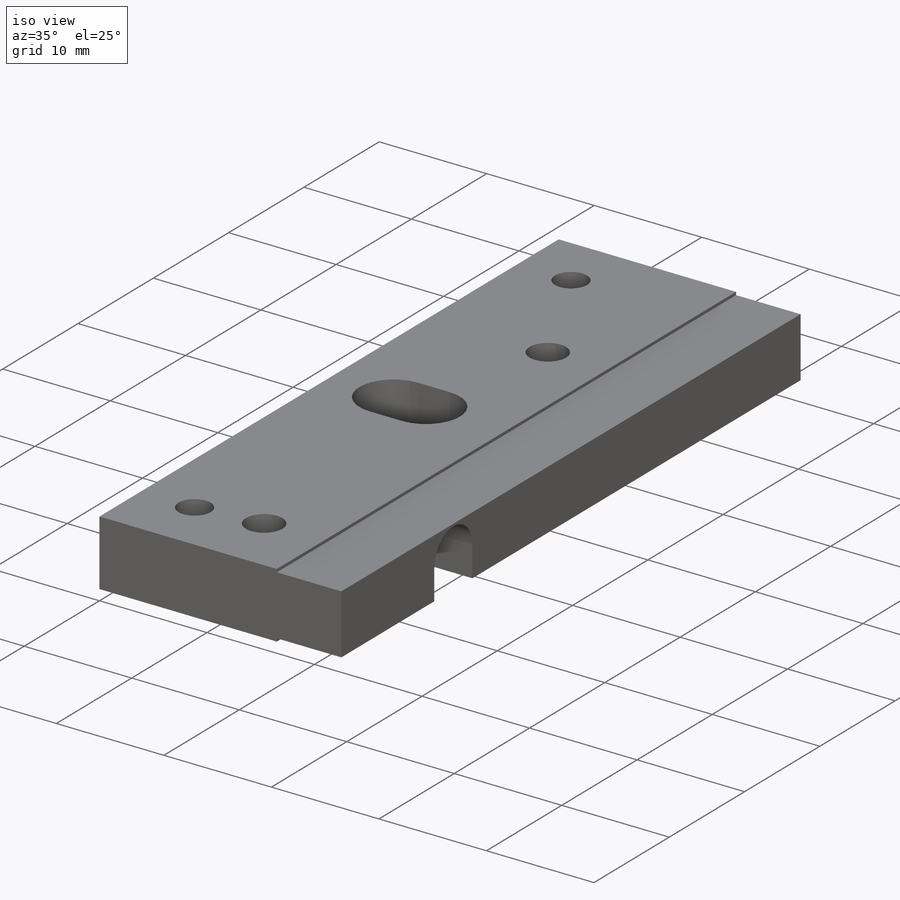
[diagram: iso view]
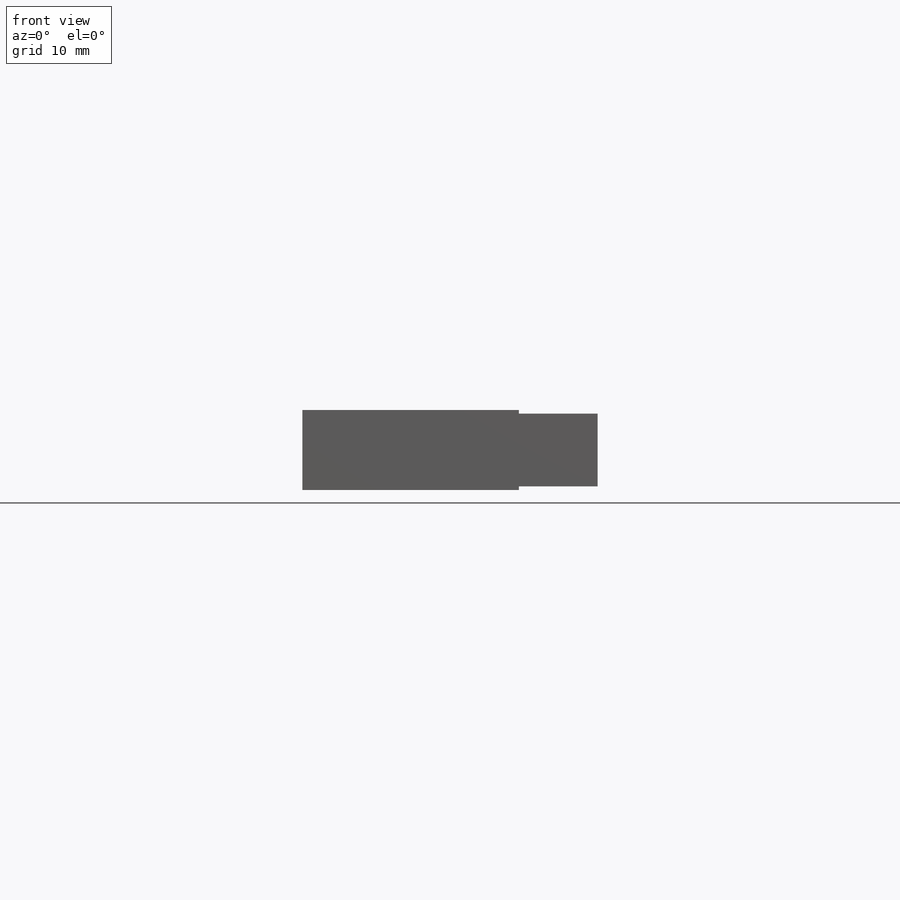
[diagram: front view]
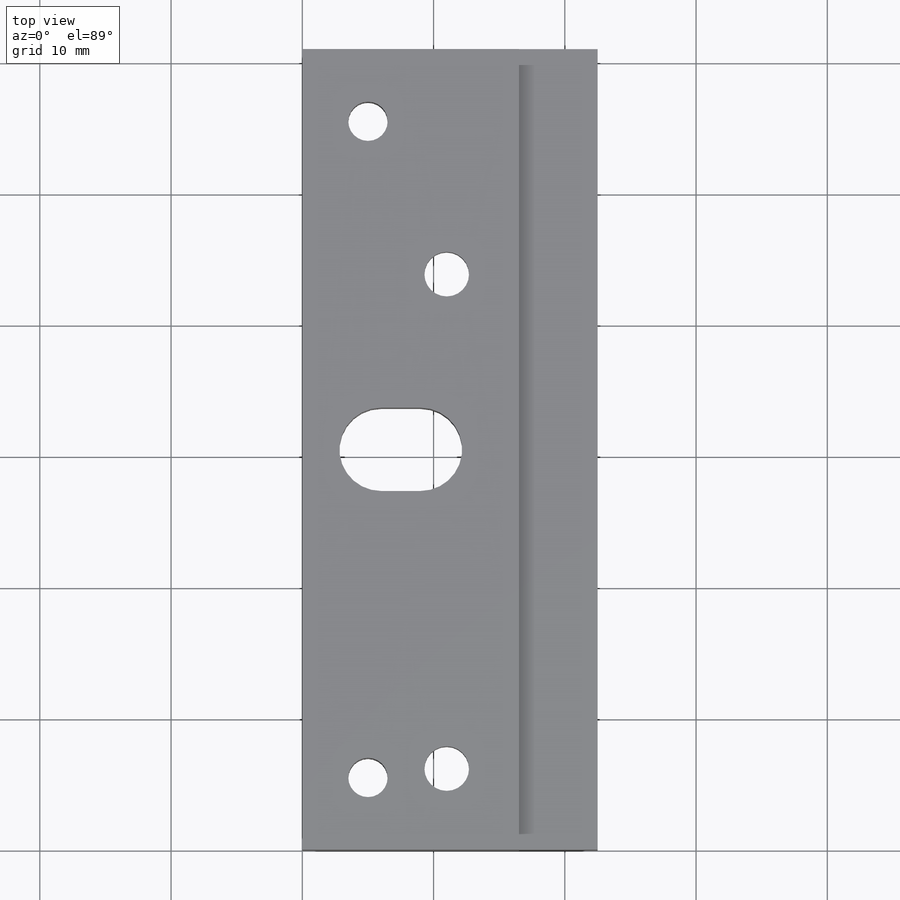
[diagram: top view]
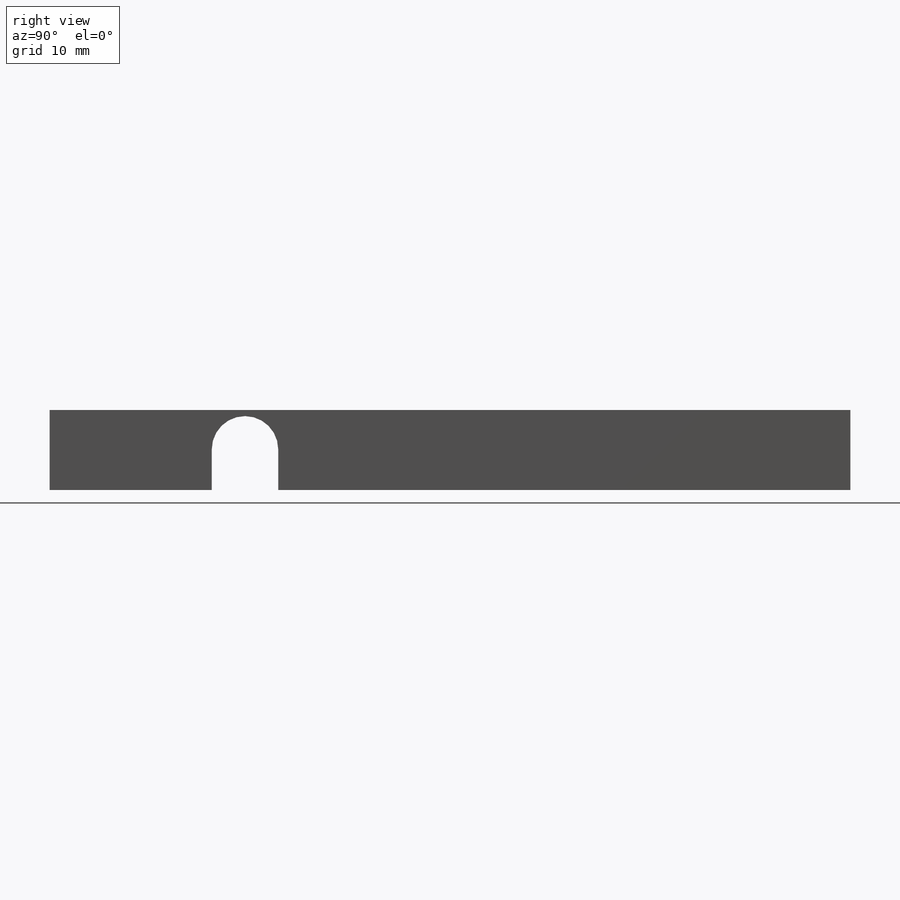
[diagram: right view]
SOLIDWORKS PART (.sldprt)
format: sldprt  version: not decoded by parser v0  size: 236,544 bytes
history: native  units: mm
features: sketch x7, cut_extrude x4, material x1, extrude x1, hole x1 (+11 scaffold rows collapsed)
feature tree (25):
  scaffold x11  (default folders/planes/origin — collapsed)
  material  "Generic Carbon Fiber"
  sketch  "Sketch1"  dims[D1=61.0mm D2=6.1mm]
  extrude  "Boss-Extrude1"  Depth=22.5mm
  sketch  "Sketch2"  dims[D1=5.55mm D2=0.3mm]
  cut_extrude  "Cut-Extrude1"  Depth=6mm
  sketch  "Sketch5"  dims[D1=5.0648mm D2=14.881mm D3=2.7254mm]
  cut_extrude  "Cut-Extrude3"  [1 undecoded]
  sketch  "Sketch6"  dims[D2=3.175mm D1=3.0mm D3=6.0mm]
  cut_extrude  "Cut-Extrude4"  [1 undecoded]
  sketch  "Sketch7"  dims[D1=3.0mm D2=5.0mm D3=25.0mm D4=25.0mm]
  cut_extrude  "Cut-Extrude5"  [1 undecoded]
  hole  "CBORE for M3 Pan Head Machine Screw2"  Diameter=3.4mm Depth=6.1mm
  sketch  "Sketch14"
  sketch  "Sketch13"  dims[hole-wizard template sketch: 42 standard entries collapsed; hole parameters kept: c12.Thru Hole Depth=6.1mm c12.C'Bore Dia.=6.5mm c12.C'Bore Depth=2.2mm]
decode coverage: 9 of 13 modeling features carry decoded parameters
note: ~ marks probable driven/reference dimensions
note: 3 parameter values undecoded
summary: no parameter record found for 3 features
note: suppression state not decoded; provenance and decode notes live in map.json
